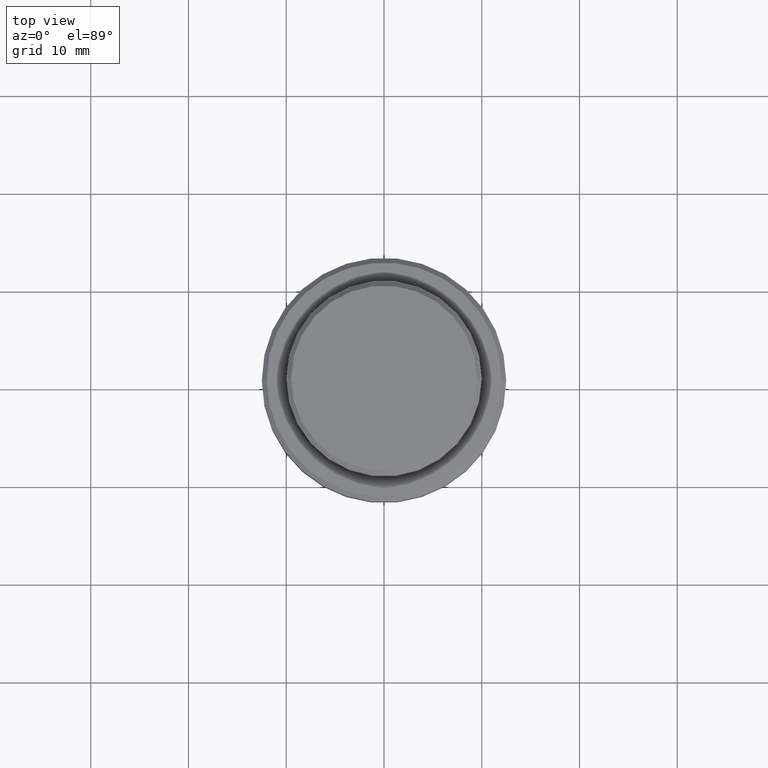
[diagram: clean part render]
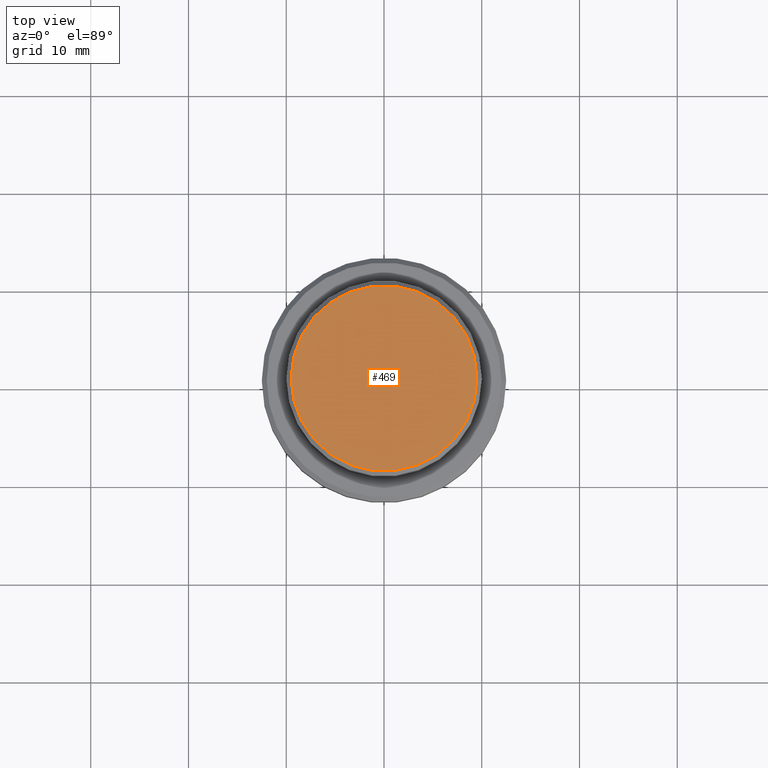
[diagram: same view with one face highlighted and labeled with its STEP entity id]
A machine part, top view. The second image highlights one B-rep face of the part: STEP entity #469.
In plain terms, the highlighted planar face has unit normal (0, -0, 1).
Its self-contained STEP definition (entity closure, byte-faithful):
#22 = CARTESIAN_POINT ( 'NONE',  ( 0.000000000000000000, 0.000000000000000000, 0.000000000000000000 ) ) ;
#186 = EDGE_CURVE ( 'NONE', #980, #913, #1039, .T. ) ;
#346 = DIRECTION ( 'NONE',  ( 1.000000000000000000, 0.000000000000000000, 0.000000000000000000 ) ) ;
#435 = CARTESIAN_POINT ( 'NONE',  ( 9.500000000000001776, 1.194030629168669469E-15, 0.000000000000000000 ) ) ;
#469 = ADVANCED_FACE ( 'NONE', ( #765 ), #669, .T. ) ;
#533 = DIRECTION ( 'NONE',  ( 1.000000000000000000, 0.000000000000000000, 0.000000000000000000 ) ) ;
#669 = PLANE ( 'NONE',  #847 ) ;
#765 = FACE_OUTER_BOUND ( 'NONE', #1034, .T. ) ;
#768 = DIRECTION ( 'NONE',  ( -0.000000000000000000, -0.000000000000000000, 1.000000000000000000 ) ) ;
#772 = CARTESIAN_POINT ( 'NONE',  ( 0.000000000000000000, 0.000000000000000000, 0.000000000000000000 ) ) ;
#847 = AXIS2_PLACEMENT_3D ( 'NONE', #772, #1208, #1122 ) ;
#855 = AXIS2_PLACEMENT_3D ( 'NONE', #1209, #768, #533 ) ;
#895 = AXIS2_PLACEMENT_3D ( 'NONE', #22, #1334, #346 ) ;
#913 = VERTEX_POINT ( 'NONE', #1096 ) ;
#980 = VERTEX_POINT ( 'NONE', #435 ) ;
#1034 = EDGE_LOOP ( 'NONE', ( #1316, #1088 ) ) ;
#1039 = CIRCLE ( 'NONE', #895, 9.500000000000001776 ) ;
#1042 = CIRCLE ( 'NONE', #855, 9.500000000000001776 ) ;
#1088 = ORIENTED_EDGE ( 'NONE', *, *, #186, .T. ) ;
#1096 = CARTESIAN_POINT ( 'NONE',  ( -9.500000000000001776, 0.000000000000000000, 0.000000000000000000 ) ) ;
#1122 = DIRECTION ( 'NONE',  ( 1.000000000000000000, 0.000000000000000000, 0.000000000000000000 ) ) ;
#1208 = DIRECTION ( 'NONE',  ( 0.000000000000000000, -0.000000000000000000, 1.000000000000000000 ) ) ;
#1209 = CARTESIAN_POINT ( 'NONE',  ( 0.000000000000000000, 0.000000000000000000, 0.000000000000000000 ) ) ;
#1316 = ORIENTED_EDGE ( 'NONE', *, *, #1340, .T. ) ;
#1334 = DIRECTION ( 'NONE',  ( -0.000000000000000000, -0.000000000000000000, 1.000000000000000000 ) ) ;
#1340 = EDGE_CURVE ( 'NONE', #913, #980, #1042, .T. ) ;